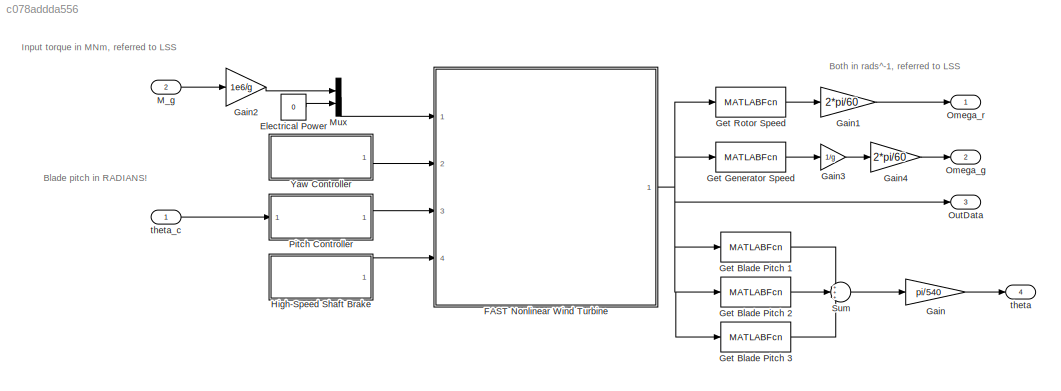
MODEL slx_c078addda556
KIND model
CONFIG AbsTol = auto
CONFIG EnableMultiTasking = off
CONFIG FixedStep = DT
CONFIG MaxStep = auto
CONFIG MinStep = auto
CONFIG RelTol = 1e-3
CONFIG SampleTimeConstraint = Unconstrained
CONFIG Solver = FixedStepAuto
CONFIG SolverName = FixedStepAuto
CONFIG StartTime = 0.0
CONFIG StopTime = 10.0
BLOCK [Constant] Electrical Power
  Value = 0
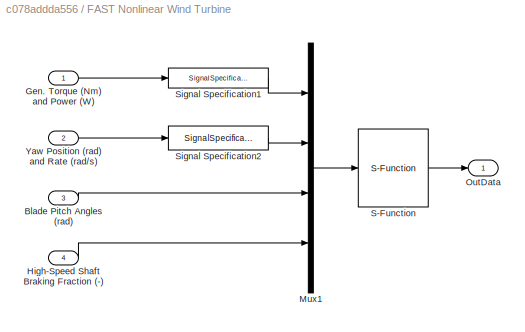
BLOCK [SubSystem] FAST Nonlinear Wind Turbine
  Ports = [4, 1]
  RequestExecContextInheritance = off
BLOCK [Inport] FAST Nonlinear Wind Turbine/Blade Pitch Angles (rad)
  Port = 3
BLOCK [Inport] FAST Nonlinear Wind Turbine/Gen. Torque (Nm) and Power (W)
BLOCK [Inport] FAST Nonlinear Wind Turbine/High-Speed Shaft Braking Fraction (-)
  Port = 4
BLOCK [Mux] FAST Nonlinear Wind Turbine/Mux1
  DisplayOption = bar
  Ports = [4, 1]
BLOCK [Outport] FAST Nonlinear Wind Turbine/OutData
  VectorParamsAs1DForOutWhenUnconnected = off
BLOCK [S-Function] FAST Nonlinear Wind Turbine/S-Function
  EnableBusSupport = off
  FunctionName = FAST_SFunc
  Parameters = FAST_InputFileName, TMax, 0
  Ports = [1, 1]
  SFcnIsStateOwnerBlock = off
  SFunctionDeploymentMode = off
BLOCK [SignalSpecification] FAST Nonlinear Wind Turbine/Signal Specification1
  Dimensions = 2
  OutDataTypeStr = double
  SignalType = real
BLOCK [SignalSpecification] FAST Nonlinear Wind Turbine/Signal Specification2
  Dimensions = 2
  OutDataTypeStr = double
  SignalType = real
BLOCK [Inport] FAST Nonlinear Wind Turbine/Yaw Position (rad) and Rate (rad//s)
  Port = 2
BLOCK [Gain] Gain
  Gain = pi/540
BLOCK [Gain] Gain1
  Gain = 2*pi/60
BLOCK [Gain] Gain2
  Gain = 1e6/g
BLOCK [Gain] Gain3
  Gain = 1/g
BLOCK [Gain] Gain4
  Gain = 2*pi/60
BLOCK [MATLABFcn] Get Blade Pitch 1
  MATLABFcn = u(strmatch('PtchPMzc1',OutList))
  Ports = [1, 1]
BLOCK [MATLABFcn] Get Blade Pitch 2
  MATLABFcn = u(strmatch('PtchPMzc2',OutList))
  Ports = [1, 1]
BLOCK [MATLABFcn] Get Blade Pitch 3
  MATLABFcn = u(strmatch('PtchPMzc3',OutList))
  Ports = [1, 1]
BLOCK [MATLABFcn] Get Generator Speed
  MATLABFcn = u(strmatch('GenSpeed',OutList))
  Ports = [1, 1]
BLOCK [MATLABFcn] Get Rotor Speed
  MATLABFcn = u(strmatch('RotSpeed',OutList))
  Ports = [1, 1]
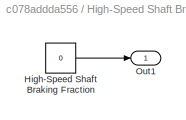
BLOCK [SubSystem] High-Speed Shaft Brake
  Ports = [0, 1]
  RequestExecContextInheritance = off
BLOCK [Constant] High-Speed Shaft Brake/High-Speed Shaft Braking Fraction
  Value = 0
BLOCK [Outport] High-Speed Shaft Brake/Out1
  VectorParamsAs1DForOutWhenUnconnected = off
BLOCK [Inport] M_g
  Port = 2
BLOCK [Mux] Mux
  DisplayOption = bar
  Inputs = 2
  Ports = [2, 1]
BLOCK [Outport] Omega_g
  Port = 2
BLOCK [Outport] Omega_r
BLOCK [Outport] OutData
  Port = 3
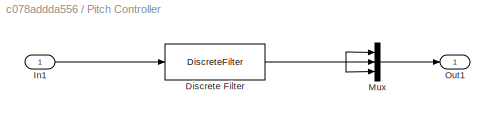
BLOCK [SubSystem] Pitch Controller
  Ports = [1, 1]
  RequestExecContextInheritance = off
BLOCK [DiscreteFilter] Pitch Controller/Discrete Filter
  Denominator = [1 -1.9444999 0.946]
  InputPortMap = u0
  Numerator = [0.000375 0.000750 0.000375]
  Ports = [1, 1]
  SampleTime = DT
BLOCK [Inport] Pitch Controller/In1
BLOCK [Mux] Pitch Controller/Mux
  DisplayOption = bar
  Inputs = 3
  Ports = [3, 1]
BLOCK [Outport] Pitch Controller/Out1
  VectorParamsAs1DForOutWhenUnconnected = off
BLOCK [Sum] Sum
  Inputs = +++
  Ports = [3, 1]
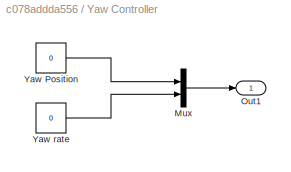
BLOCK [SubSystem] Yaw Controller
  Ports = [0, 1]
  RequestExecContextInheritance = off
BLOCK [Mux] Yaw Controller/Mux
  DisplayOption = bar
  Inputs = 2
  Ports = [2, 1]
BLOCK [Outport] Yaw Controller/Out1
  VectorParamsAs1DForOutWhenUnconnected = off
BLOCK [Constant] Yaw Controller/Yaw Position
  Value = 0
BLOCK [Constant] Yaw Controller/Yaw rate
  Value = 0
BLOCK [Outport] theta
  Port = 4
BLOCK [Inport] theta_c
ANNOTATION (root): Blade pitch in RADIANS!
ANNOTATION (root): Both in rads^-1, referred to LSS
ANNOTATION (root): Input torque in MNm, referred to LSS
LINE Electrical Power:1 -> Mux:2
LINE FAST Nonlinear Wind Turbine/Blade Pitch Angles (rad):1 -> FAST Nonlinear Wind Turbine/Mux1:3
LINE FAST Nonlinear Wind Turbine/Gen. Torque (Nm) and Power (W):1 -> FAST Nonlinear Wind Turbine/Signal Specification1:1
LINE FAST Nonlinear Wind Turbine/High-Speed Shaft Braking Fraction (-):1 -> FAST Nonlinear Wind Turbine/Mux1:4
LINE FAST Nonlinear Wind Turbine/Mux1:1 -> FAST Nonlinear Wind Turbine/S-Function:1
LINE FAST Nonlinear Wind Turbine/S-Function:1 -> FAST Nonlinear Wind Turbine/OutData:1
LINE FAST Nonlinear Wind Turbine/Signal Specification1:1 -> FAST Nonlinear Wind Turbine/Mux1:1
LINE FAST Nonlinear Wind Turbine/Signal Specification2:1 -> FAST Nonlinear Wind Turbine/Mux1:2
LINE FAST Nonlinear Wind Turbine/Yaw Position (rad) and Rate (rad//s):1 -> FAST Nonlinear Wind Turbine/Signal Specification2:1
NET FAST Nonlinear Wind Turbine:1 -> Get Blade Pitch 1:1, Get Blade Pitch 2:1, Get Blade Pitch 3:1, Get Generator Speed:1, Get Rotor Speed:1, OutData:1
LINE Gain1:1 -> Omega_r:1
LINE Gain2:1 -> Mux:1
LINE Gain3:1 -> Gain4:1
LINE Gain4:1 -> Omega_g:1
LINE Gain:1 -> theta:1
LINE Get Blade Pitch 1:1 -> Sum:1
LINE Get Blade Pitch 2:1 -> Sum:2
LINE Get Blade Pitch 3:1 -> Sum:3
LINE Get Generator Speed:1 -> Gain3:1
LINE Get Rotor Speed:1 -> Gain1:1
LINE High-Speed Shaft Brake/High-Speed Shaft Braking Fraction:1 -> High-Speed Shaft Brake/Out1:1
LINE High-Speed Shaft Brake:1 -> FAST Nonlinear Wind Turbine:4
LINE M_g:1 -> Gain2:1
LINE Mux:1 -> FAST Nonlinear Wind Turbine:1
NET Pitch Controller/Discrete Filter:1 -> Pitch Controller/Mux:1, Pitch Controller/Mux:2, Pitch Controller/Mux:3
LINE Pitch Controller/In1:1 -> Pitch Controller/Discrete Filter:1
LINE Pitch Controller/Mux:1 -> Pitch Controller/Out1:1
LINE Pitch Controller:1 -> FAST Nonlinear Wind Turbine:3
LINE Sum:1 -> Gain:1
LINE Yaw Controller/Mux:1 -> Yaw Controller/Out1:1
LINE Yaw Controller/Yaw Position:1 -> Yaw Controller/Mux:1
LINE Yaw Controller/Yaw rate:1 -> Yaw Controller/Mux:2
LINE Yaw Controller:1 -> FAST Nonlinear Wind Turbine:2
LINE theta_c:1 -> Pitch Controller:1
note: NET lines group one-source signal fan-out (src -> all destinations, sorted); 1:1 wires keep LINE
